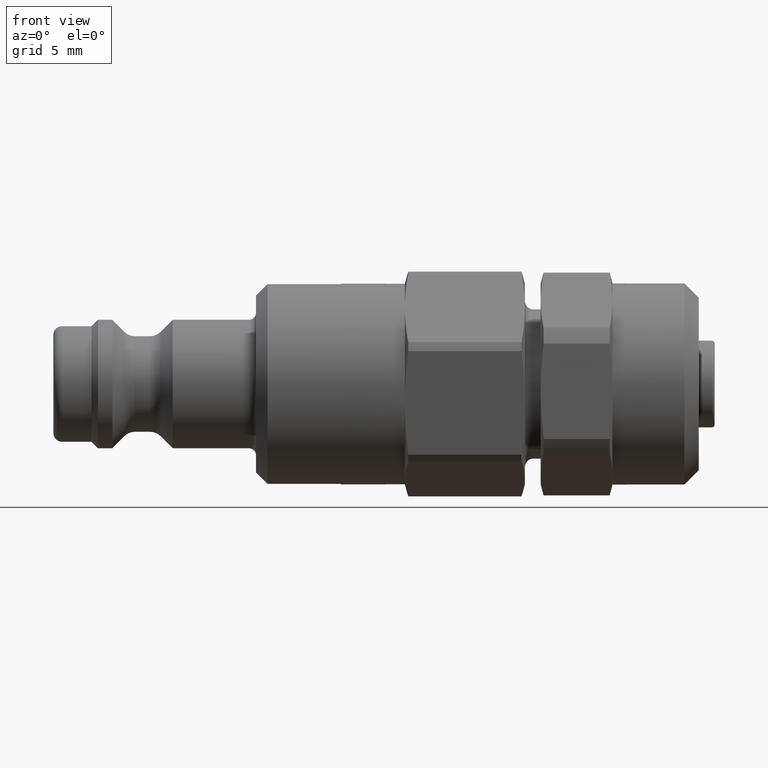
[diagram: clean part render]
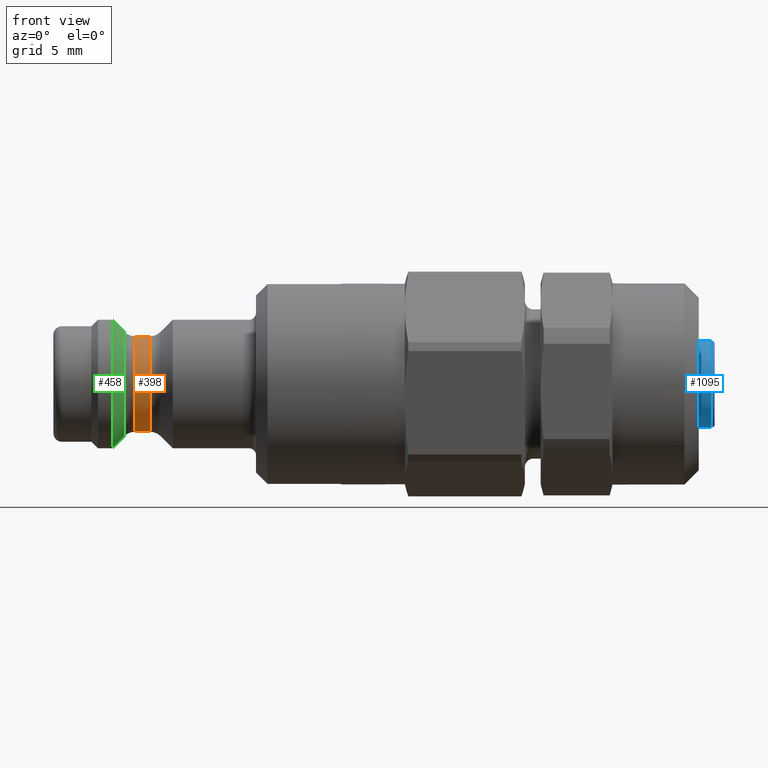
[diagram: same view with three faces highlighted in distinct colors, each labeled with its STEP entity id]
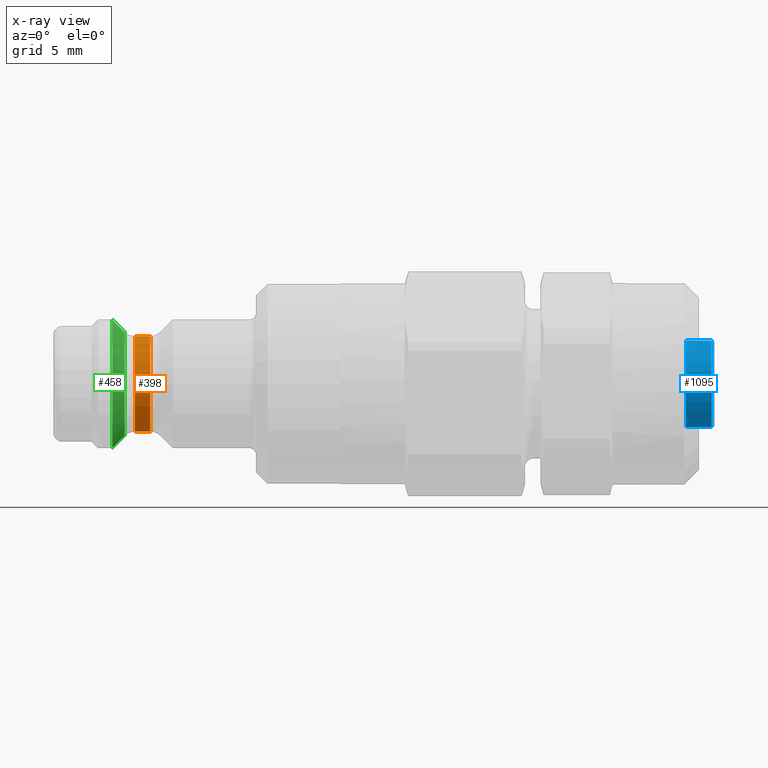
[diagram: x-ray of the same camera — body ghosted, the three highlighted faces saturated]
A machine part, front view with three faces highlighted in distinct colors.
The next image is the same camera in x-ray (body ghosted, the three faces saturated) — at least one of them is partly hidden behind the body in this view.
Their STEP definitions:

[orange] entity #398 — the highlighted cylindrical surface (bore or boss wall) has radius 3.35 mm, axis along (1, 0, 0).
#356=CARTESIAN_POINT('',(6.735786437626906,3.35,0.0));
#357=VERTEX_POINT('',#356);
#358=CARTESIAN_POINT('',(6.735786437626906,0.0,0.0));
#359=DIRECTION('',(1.0,0.0,0.0));
#360=DIRECTION('',(0.0,-1.0,0.0));
#361=AXIS2_PLACEMENT_3D('',#358,#359,#360);
#362=CIRCLE('',#361,3.35);
#363=EDGE_CURVE('',#357,#357,#362,.T.);
#379=CARTESIAN_POINT('',(6.200000000000001,0.0,0.0));
#380=DIRECTION('',(1.0,0.0,0.0));
#381=DIRECTION('',(0.0,1.0,0.0));
#382=AXIS2_PLACEMENT_3D('',#379,#380,#381);
#383=CYLINDRICAL_SURFACE('',#382,3.35);
#384=CARTESIAN_POINT('',(5.664213562373095,3.35,-8.205134E-016));
#385=VERTEX_POINT('',#384);
#386=CARTESIAN_POINT('',(5.664213562373095,0.0,0.0));
#387=DIRECTION('',(-1.0,0.0,0.0));
#388=DIRECTION('',(0.0,-1.0,0.0));
#389=AXIS2_PLACEMENT_3D('',#386,#387,#388);
#390=CIRCLE('',#389,3.35);
#391=EDGE_CURVE('',#385,#385,#390,.T.);
#392=ORIENTED_EDGE('',*,*,#391,.F.);
#393=EDGE_LOOP('',(#392));
#394=FACE_OUTER_BOUND('',#393,.T.);
#395=ORIENTED_EDGE('',*,*,#363,.F.);
#396=EDGE_LOOP('',(#395));
#397=FACE_BOUND('',#396,.T.);
#398=ADVANCED_FACE('',(#394,#397),#383,.T.);

[blue] entity #1095 — the highlighted cylindrical surface (bore or boss wall) has radius 3.025 mm, axis along (-1, 0, 0).
#1064=CARTESIAN_POINT('',(0.2,3.025,-7.409113E-016));
#1065=VERTEX_POINT('',#1064);
#1066=CARTESIAN_POINT('',(0.2,0.0,0.0));
#1067=DIRECTION('',(-1.0,0.0,0.0));
#1068=DIRECTION('',(0.0,-1.0,0.0));
#1069=AXIS2_PLACEMENT_3D('',#1066,#1067,#1068);
#1070=CIRCLE('',#1069,3.025);
#1071=EDGE_CURVE('',#1065,#1065,#1070,.T.);
#1076=CARTESIAN_POINT('',(1.0,0.0,0.0));
#1077=DIRECTION('',(1.0,0.0,0.0));
#1078=DIRECTION('',(0.0,1.0,0.0));
#1079=AXIS2_PLACEMENT_3D('',#1076,#1077,#1078);
#1080=CYLINDRICAL_SURFACE('',#1079,3.025);
#1081=CARTESIAN_POINT('',(2.0,3.025,0.0));
#1082=VERTEX_POINT('',#1081);
#1083=CARTESIAN_POINT('',(2.0,0.0,0.0));
#1084=DIRECTION('',(1.0,0.0,0.0));
#1085=DIRECTION('',(0.0,1.0,0.0));
#1086=AXIS2_PLACEMENT_3D('',#1083,#1084,#1085);
#1087=CIRCLE('',#1086,3.025);
#1088=EDGE_CURVE('',#1082,#1082,#1087,.T.);
#1089=ORIENTED_EDGE('',*,*,#1088,.F.);
#1090=EDGE_LOOP('',(#1089));
#1091=FACE_OUTER_BOUND('',#1090,.T.);
#1092=ORIENTED_EDGE('',*,*,#1071,.F.);
#1093=EDGE_LOOP('',(#1092));
#1094=FACE_BOUND('',#1093,.T.);
#1095=ADVANCED_FACE('',(#1091,#1094),#1080,.T.);

[green] entity #458 — the highlighted conical surface has half-angle 45 deg.
#424=CARTESIAN_POINT('',(4.957106781186548,3.642893218813454,-6.162976E-032));
#425=VERTEX_POINT('',#424);
#426=CARTESIAN_POINT('',(4.957106781186548,0.0,-4.461258E-016));
#427=DIRECTION('',(1.0,0.0,0.0));
#428=DIRECTION('',(0.0,-1.0,0.0));
#429=AXIS2_PLACEMENT_3D('',#426,#427,#428);
#430=CIRCLE('',#429,3.642893218813454);
#431=EDGE_CURVE('',#425,#425,#430,.T.);
#439=CARTESIAN_POINT('',(4.675000000000001,0.0,0.0));
#440=DIRECTION('',(-1.0,0.0,0.0));
#441=DIRECTION('',(0.0,1.0,0.0));
#442=AXIS2_PLACEMENT_3D('',#439,#440,#441);
#443=CONICAL_SURFACE('',#442,3.925000000000001,45.000000000000007);
#444=CARTESIAN_POINT('',(4.1,4.500000000000001,0.0));
#445=VERTEX_POINT('',#444);
#446=CARTESIAN_POINT('',(4.1,0.0,0.0));
#447=DIRECTION('',(1.0,0.0,0.0));
#448=DIRECTION('',(0.0,1.0,0.0));
#449=AXIS2_PLACEMENT_3D('',#446,#447,#448);
#450=CIRCLE('',#449,4.500000000000001);
#451=EDGE_CURVE('',#445,#445,#450,.T.);
#452=ORIENTED_EDGE('',*,*,#451,.T.);
#453=EDGE_LOOP('',(#452));
#454=FACE_OUTER_BOUND('',#453,.T.);
#455=ORIENTED_EDGE('',*,*,#431,.F.);
#456=EDGE_LOOP('',(#455));
#457=FACE_BOUND('',#456,.T.);
#458=ADVANCED_FACE('',(#454,#457),#443,.T.);